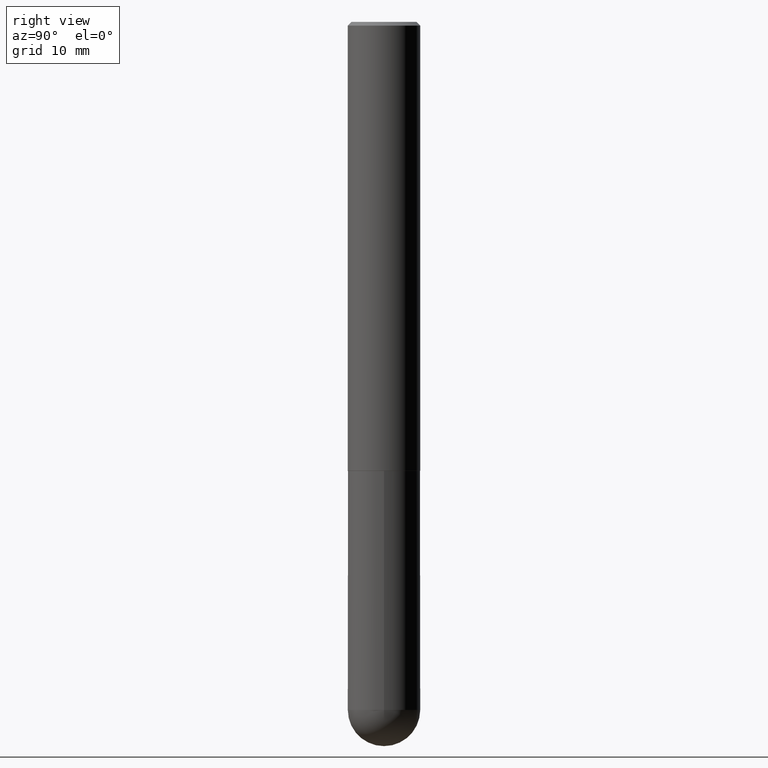
[diagram: clean part render]
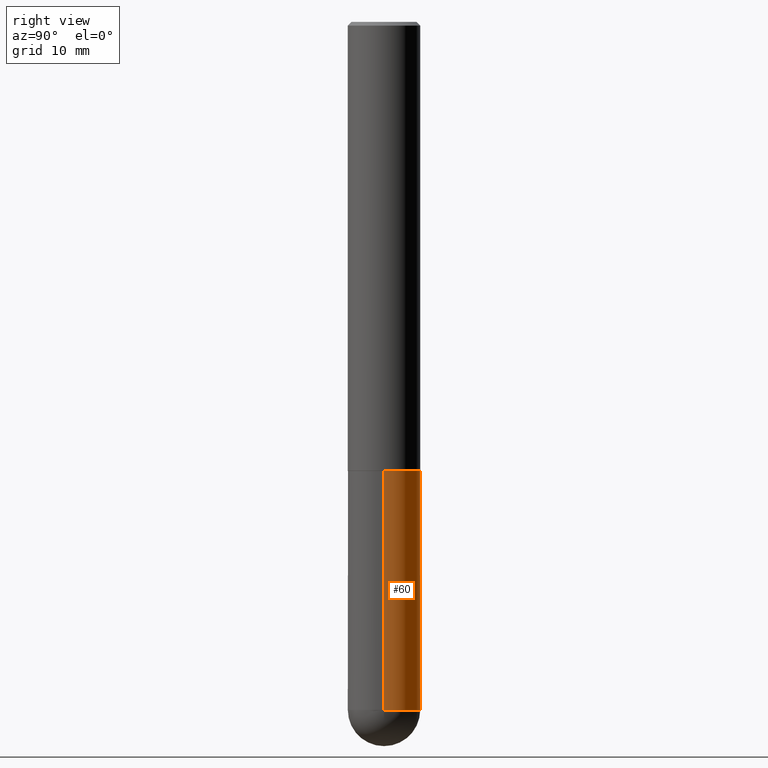
[diagram: same view with one face highlighted and labeled with its STEP entity id]
A machine part, right view. The second image highlights one B-rep face of the part: STEP entity #60.
In plain terms, the highlighted cylindrical surface (edge-blend (fillet) strip) has radius 5 mm, axis along (-0, 0, 1).
Its self-contained STEP definition (entity closure, byte-faithful):
#18 = EDGE_CURVE ( 'NONE', #346, #255, #348, .T. ) ;
#30 = CARTESIAN_POINT ( 'NONE',  ( 9.146420155453340551E-29, -1.305866392947419340E-14, -3.740150000000000752 ) ) ;
#33 = EDGE_CURVE ( 'NONE', #313, #158, #47, .T. ) ;
#34 = CARTESIAN_POINT ( 'NONE',  ( 0.1968499999999999694, -1.216510656783075637E-14, -3.740150000000000752 ) ) ;
#45 = EDGE_LOOP ( 'NONE', ( #167, #90, #205, #211, #118 ) ) ;
#47 = CIRCLE ( 'NONE', #107, 0.1968500000000000250 ) ;
#54 = EDGE_CURVE ( 'NONE', #255, #158, #357, .T. ) ;
#56 = AXIS2_PLACEMENT_3D ( 'NONE', #68, #394, #163 ) ;
#60 = ADVANCED_FACE ( 'NONE', ( #361 ), #329, .T. ) ;
#68 = CARTESIAN_POINT ( 'NONE',  ( 9.146420155453340551E-29, -1.305866392947419340E-14, -3.740150000000000752 ) ) ;
#82 = VERTEX_POINT ( 'NONE', #34 ) ;
#90 = ORIENTED_EDGE ( 'NONE', *, *, #54, .T. ) ;
#97 = DIRECTION ( 'NONE',  ( -2.445468806185136877E-29, 3.491481338843145188E-15, 1.000000000000000000 ) ) ;
#107 = AXIS2_PLACEMENT_3D ( 'NONE', #391, #161, #194 ) ;
#108 = CARTESIAN_POINT ( 'NONE',  ( -0.1968499999999999694, -9.391806989384456184E-15, -3.740150000000000752 ) ) ;
#118 = ORIENTED_EDGE ( 'NONE', *, *, #131, .T. ) ;
#131 = EDGE_CURVE ( 'NONE', #82, #346, #355, .T. ) ;
#158 = VERTEX_POINT ( 'NONE', #168 ) ;
#161 = DIRECTION ( 'NONE',  ( -2.445468806185136597E-29, 3.491481338843145583E-15, 1.000000000000000000 ) ) ;
#163 = DIRECTION ( 'NONE',  ( 1.000000000000000000, -6.982962677686269866E-15, 0.000000000000000000 ) ) ;
#164 = CARTESIAN_POINT ( 'NONE',  ( 0.000000000000000000, 0.000000000000000000, 0.000000000000000000 ) ) ;
#166 = DIRECTION ( 'NONE',  ( -2.445468806185136597E-29, 3.491481338843145583E-15, 1.000000000000000000 ) ) ;
#167 = ORIENTED_EDGE ( 'NONE', *, *, #18, .T. ) ;
#168 = CARTESIAN_POINT ( 'NONE',  ( -0.1968500000000000250, -9.391806989384456184E-15, -2.440900000000000070 ) ) ;
#181 = CARTESIAN_POINT ( 'NONE',  ( 0.1968500000000000250, -9.896953003084774574E-15, -2.440900000000000070 ) ) ;
#184 = VECTOR ( 'NONE', #97, 39.37007874015748143 ) ;
#185 = LINE ( 'NONE', #244, #380 ) ;
#194 = DIRECTION ( 'NONE',  ( 1.000000000000000000, -6.982962677686262766E-15, 0.000000000000000000 ) ) ;
#196 = CARTESIAN_POINT ( 'NONE',  ( -0.1968499999999999694, 1.398703375343756999E-15, -9.682923725166782276E-30 ) ) ;
#205 = ORIENTED_EDGE ( 'NONE', *, *, #33, .F. ) ;
#211 = ORIENTED_EDGE ( 'NONE', *, *, #351, .F. ) ;
#241 = CARTESIAN_POINT ( 'NONE',  ( 1.374596203102631736E-15, 0.1968499999999867855, -3.740150000000001196 ) ) ;
#244 = CARTESIAN_POINT ( 'NONE',  ( 0.1968499999999999694, -1.374596203102541411E-15, 9.598753983154298056E-30 ) ) ;
#255 = VERTEX_POINT ( 'NONE', #108 ) ;
#286 = DIRECTION ( 'NONE',  ( 1.000000000000000000, -6.982962677686266711E-15, 4.876176775795935793E-29 ) ) ;
#293 = DIRECTION ( 'NONE',  ( 1.000000000000000000, -6.982962677686269866E-15, 0.000000000000000000 ) ) ;
#313 = VERTEX_POINT ( 'NONE', #181 ) ;
#322 = DIRECTION ( 'NONE',  ( -2.445468806185136597E-29, 3.491481338843145583E-15, 1.000000000000000000 ) ) ;
#328 = AXIS2_PLACEMENT_3D ( 'NONE', #30, #166, #293 ) ;
#329 = CYLINDRICAL_SURFACE ( 'NONE', #370, 0.1968499999999999694 ) ;
#346 = VERTEX_POINT ( 'NONE', #241 ) ;
#348 = CIRCLE ( 'NONE', #56, 0.1968499999999999694 ) ;
#351 = EDGE_CURVE ( 'NONE', #82, #313, #185, .T. ) ;
#355 = CIRCLE ( 'NONE', #328, 0.1968499999999999694 ) ;
#357 = LINE ( 'NONE', #196, #184 ) ;
#361 = FACE_OUTER_BOUND ( 'NONE', #45, .T. ) ;
#370 = AXIS2_PLACEMENT_3D ( 'NONE', #164, #322, #286 ) ;
#380 = VECTOR ( 'NONE', #407, 39.37007874015748143 ) ;
#391 = CARTESIAN_POINT ( 'NONE',  ( 5.969144809017299038E-29, -8.522356799982232966E-15, -2.440900000000000070 ) ) ;
#394 = DIRECTION ( 'NONE',  ( -2.445468806185136597E-29, 3.491481338843145583E-15, 1.000000000000000000 ) ) ;
#407 = DIRECTION ( 'NONE',  ( -2.445468806185136877E-29, 3.491481338843145188E-15, 1.000000000000000000 ) ) ;